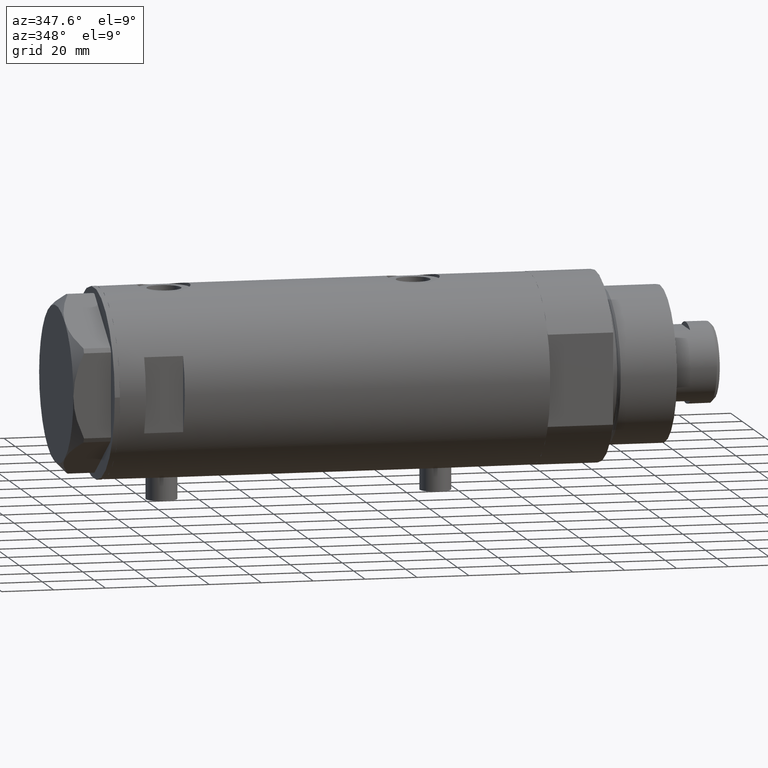
[diagram: clean part render]
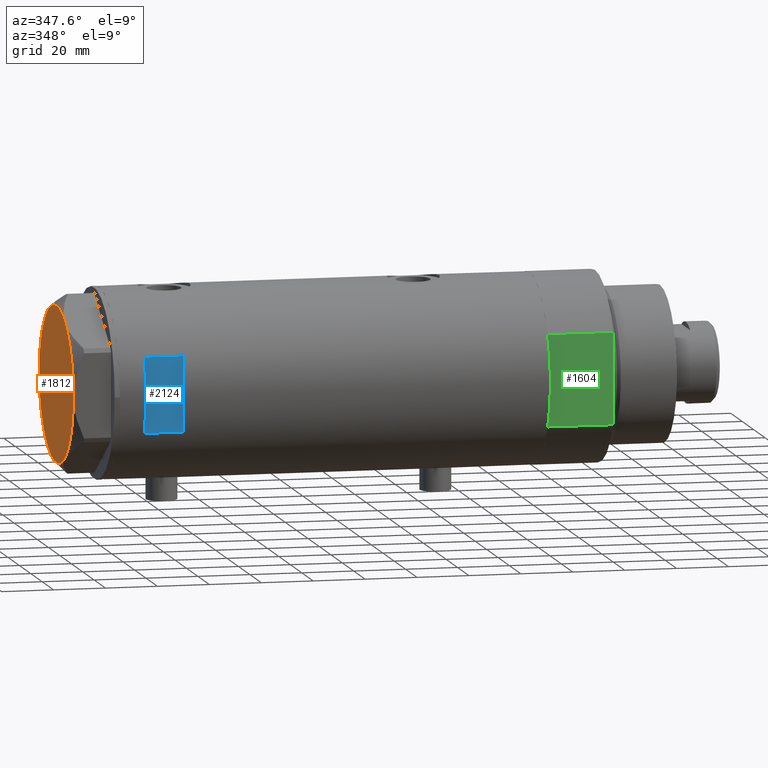
[diagram: same view with three faces highlighted in distinct colors, each labeled with its STEP entity id]
A machine part, auxiliary view with three faces highlighted in distinct colors.
Their STEP definitions:

[orange] entity #1812 — the highlighted planar face has unit normal (-1, -0, 0).
#322 = EDGE_CURVE ( 'NONE', #2863, #3522, #1641, .T. ) ;
#350 = EDGE_CURVE ( 'NONE', #3546, #1949, #558, .T. ) ;
#389 = CARTESIAN_POINT ( 'NONE',  ( 30.00000000000000000, 9.013887592422954582E-15, 14.50000000000000000 ) ) ;
#497 = CARTESIAN_POINT ( 'NONE',  ( 14.99999999999998757, -25.98076211353316722, 14.50000000000000000 ) ) ;
#509 = CARTESIAN_POINT ( 'NONE',  ( -30.00000000000000000, 0.000000000000000000, 14.50000000000000000 ) ) ;
#534 = ORIENTED_EDGE ( 'NONE', *, *, #2879, .T. ) ;
#558 = CIRCLE ( 'NONE', #2775, 30.00000000000000000 ) ;
#598 = DIRECTION ( 'NONE',  ( 1.000000000000000000, 0.000000000000000000, 0.000000000000000000 ) ) ;
#631 = EDGE_CURVE ( 'NONE', #1949, #2863, #1353, .T. ) ;
#709 = AXIS2_PLACEMENT_3D ( 'NONE', #2300, #2397, #598 ) ;
#812 = DIRECTION ( 'NONE',  ( 0.000000000000000000, 0.000000000000000000, 1.000000000000000000 ) ) ;
#832 = CARTESIAN_POINT ( 'NONE',  ( 0.000000000000000000, 0.000000000000000000, 14.50000000000000000 ) ) ;
#1039 = CARTESIAN_POINT ( 'NONE',  ( -14.99999999999999645, 25.98076211353316367, 14.50000000000000000 ) ) ;
#1155 = CIRCLE ( 'NONE', #1943, 30.00000000000000000 ) ;
#1180 = CARTESIAN_POINT ( 'NONE',  ( 0.000000000000000000, 0.000000000000000000, 14.50000000000000000 ) ) ;
#1258 = CARTESIAN_POINT ( 'NONE',  ( 0.000000000000000000, 0.000000000000000000, 14.50000000000000000 ) ) ;
#1353 = CIRCLE ( 'NONE', #4036, 30.00000000000000000 ) ;
#1407 = DIRECTION ( 'NONE',  ( 1.000000000000000000, 0.000000000000000000, 0.000000000000000000 ) ) ;
#1494 = AXIS2_PLACEMENT_3D ( 'NONE', #1180, #1611, #3273 ) ;
#1514 = AXIS2_PLACEMENT_3D ( 'NONE', #3544, #1881, #3259 ) ;
#1611 = DIRECTION ( 'NONE',  ( 0.000000000000000000, 0.000000000000000000, 1.000000000000000000 ) ) ;
#1631 = EDGE_LOOP ( 'NONE', ( #534, #2942, #3440, #1975, #4055, #4415 ) ) ;
#1641 = CIRCLE ( 'NONE', #4456, 30.00000000000000000 ) ;
#1694 = CARTESIAN_POINT ( 'NONE',  ( -14.99999999999999645, -25.98076211353316367, 14.50000000000000000 ) ) ;
#1752 = DIRECTION ( 'NONE',  ( 1.000000000000000000, 0.000000000000000000, 0.000000000000000000 ) ) ;
#1812 = ADVANCED_FACE ( 'NONE', ( #2904 ), #2246, .T. ) ;
#1881 = DIRECTION ( 'NONE',  ( 0.000000000000000000, 0.000000000000000000, 1.000000000000000000 ) ) ;
#1943 = AXIS2_PLACEMENT_3D ( 'NONE', #832, #812, #3976 ) ;
#1949 = VERTEX_POINT ( 'NONE', #1039 ) ;
#1975 = ORIENTED_EDGE ( 'NONE', *, *, #631, .T. ) ;
#2044 = VERTEX_POINT ( 'NONE', #497 ) ;
#2168 = DIRECTION ( 'NONE',  ( 0.000000000000000000, 0.000000000000000000, 1.000000000000000000 ) ) ;
#2246 = PLANE ( 'NONE',  #1494 ) ;
#2300 = CARTESIAN_POINT ( 'NONE',  ( 0.000000000000000000, 0.000000000000000000, 14.50000000000000000 ) ) ;
#2397 = DIRECTION ( 'NONE',  ( 0.000000000000000000, 0.000000000000000000, 1.000000000000000000 ) ) ;
#2504 = DIRECTION ( 'NONE',  ( 0.000000000000000000, 0.000000000000000000, 1.000000000000000000 ) ) ;
#2518 = EDGE_CURVE ( 'NONE', #2786, #3546, #1155, .T. ) ;
#2578 = DIRECTION ( 'NONE',  ( 0.000000000000000000, 0.000000000000000000, 1.000000000000000000 ) ) ;
#2775 = AXIS2_PLACEMENT_3D ( 'NONE', #1258, #2578, #3265 ) ;
#2786 = VERTEX_POINT ( 'NONE', #389 ) ;
#2798 = CARTESIAN_POINT ( 'NONE',  ( 0.000000000000000000, 0.000000000000000000, 14.50000000000000000 ) ) ;
#2863 = VERTEX_POINT ( 'NONE', #509 ) ;
#2879 = EDGE_CURVE ( 'NONE', #2044, #2786, #3161, .T. ) ;
#2904 = FACE_OUTER_BOUND ( 'NONE', #1631, .T. ) ;
#2942 = ORIENTED_EDGE ( 'NONE', *, *, #2518, .T. ) ;
#3161 = CIRCLE ( 'NONE', #1514, 30.00000000000000000 ) ;
#3259 = DIRECTION ( 'NONE',  ( 1.000000000000000000, 0.000000000000000000, 0.000000000000000000 ) ) ;
#3265 = DIRECTION ( 'NONE',  ( 1.000000000000000000, 0.000000000000000000, 0.000000000000000000 ) ) ;
#3273 = DIRECTION ( 'NONE',  ( 1.000000000000000000, 0.000000000000000000, -0.000000000000000000 ) ) ;
#3440 = ORIENTED_EDGE ( 'NONE', *, *, #350, .T. ) ;
#3522 = VERTEX_POINT ( 'NONE', #1694 ) ;
#3544 = CARTESIAN_POINT ( 'NONE',  ( 0.000000000000000000, 0.000000000000000000, 14.50000000000000000 ) ) ;
#3546 = VERTEX_POINT ( 'NONE', #4163 ) ;
#3976 = DIRECTION ( 'NONE',  ( 1.000000000000000000, 0.000000000000000000, 0.000000000000000000 ) ) ;
#4036 = AXIS2_PLACEMENT_3D ( 'NONE', #2798, #2504, #1407 ) ;
#4055 = ORIENTED_EDGE ( 'NONE', *, *, #322, .T. ) ;
#4163 = CARTESIAN_POINT ( 'NONE',  ( 14.99999999999999467, 25.98076211353316367, 14.50000000000000000 ) ) ;
#4247 = CARTESIAN_POINT ( 'NONE',  ( 0.000000000000000000, 0.000000000000000000, 14.50000000000000000 ) ) ;
#4281 = EDGE_CURVE ( 'NONE', #3522, #2044, #4461, .T. ) ;
#4415 = ORIENTED_EDGE ( 'NONE', *, *, #4281, .T. ) ;
#4456 = AXIS2_PLACEMENT_3D ( 'NONE', #4247, #2168, #1752 ) ;
#4461 = CIRCLE ( 'NONE', #709, 30.00000000000000000 ) ;

[blue] entity #2124 — the highlighted planar face has unit normal (-0, 1, 0).
#48 = VECTOR ( 'NONE', #3559, 1000.000000000000000 ) ;
#447 = ORIENTED_EDGE ( 'NONE', *, *, #1871, .T. ) ;
#627 = VECTOR ( 'NONE', #1038, 1000.000000000000000 ) ;
#802 = CARTESIAN_POINT ( 'NONE',  ( 14.49137674618942739, -33.50000000000000000, -82.90000000000000568 ) ) ;
#1038 = DIRECTION ( 'NONE',  ( 1.000000000000000000, -0.000000000000000000, -0.000000000000000000 ) ) ;
#1450 = LINE ( 'NONE', #802, #48 ) ;
#1590 = LINE ( 'NONE', #3234, #3365 ) ;
#1603 = DIRECTION ( 'NONE',  ( 0.000000000000000000, -0.000000000000000000, 1.000000000000000000 ) ) ;
#1739 = CARTESIAN_POINT ( 'NONE',  ( 14.49137674618942739, -33.50000000000000000, 72.89999999999999147 ) ) ;
#1871 = EDGE_CURVE ( 'NONE', #2912, #2497, #1590, .T. ) ;
#2026 = EDGE_CURVE ( 'NONE', #2497, #2541, #3554, .T. ) ;
#2124 = ADVANCED_FACE ( 'NONE', ( #2604 ), #4343, .F. ) ;
#2193 = CARTESIAN_POINT ( 'NONE',  ( -36.50000000000000000, -33.50000000000000000, 57.89999999999999147 ) ) ;
#2203 = AXIS2_PLACEMENT_3D ( 'NONE', #3314, #3225, #1603 ) ;
#2255 = CARTESIAN_POINT ( 'NONE',  ( -14.49137674618942739, -33.50000000000000000, 57.89999999999999147 ) ) ;
#2363 = ORIENTED_EDGE ( 'NONE', *, *, #4473, .T. ) ;
#2474 = ORIENTED_EDGE ( 'NONE', *, *, #3857, .F. ) ;
#2497 = VERTEX_POINT ( 'NONE', #2255 ) ;
#2524 = CARTESIAN_POINT ( 'NONE',  ( -14.49137674618942739, -33.50000000000000000, 72.89999999999999147 ) ) ;
#2541 = VERTEX_POINT ( 'NONE', #3264 ) ;
#2604 = FACE_OUTER_BOUND ( 'NONE', #3352, .T. ) ;
#2827 = LINE ( 'NONE', #4226, #627 ) ;
#2912 = VERTEX_POINT ( 'NONE', #2524 ) ;
#2958 = DIRECTION ( 'NONE',  ( -0.000000000000000000, -0.000000000000000000, -1.000000000000000000 ) ) ;
#3006 = ORIENTED_EDGE ( 'NONE', *, *, #2026, .T. ) ;
#3225 = DIRECTION ( 'NONE',  ( 0.000000000000000000, 1.000000000000000000, 0.000000000000000000 ) ) ;
#3234 = CARTESIAN_POINT ( 'NONE',  ( -14.49137674618942739, -33.50000000000000000, -82.90000000000000568 ) ) ;
#3264 = CARTESIAN_POINT ( 'NONE',  ( 14.49137674618942739, -33.50000000000000000, 57.89999999999999147 ) ) ;
#3314 = CARTESIAN_POINT ( 'NONE',  ( -36.50000000000000000, -33.50000000000000000, 72.89999999999999147 ) ) ;
#3352 = EDGE_LOOP ( 'NONE', ( #447, #3006, #2363, #2474 ) ) ;
#3365 = VECTOR ( 'NONE', #2958, 1000.000000000000000 ) ;
#3554 = LINE ( 'NONE', #2193, #3949 ) ;
#3559 = DIRECTION ( 'NONE',  ( 0.000000000000000000, 0.000000000000000000, 1.000000000000000000 ) ) ;
#3630 = DIRECTION ( 'NONE',  ( 1.000000000000000000, -0.000000000000000000, -0.000000000000000000 ) ) ;
#3857 = EDGE_CURVE ( 'NONE', #2912, #3873, #2827, .T. ) ;
#3873 = VERTEX_POINT ( 'NONE', #1739 ) ;
#3949 = VECTOR ( 'NONE', #3630, 1000.000000000000000 ) ;
#4226 = CARTESIAN_POINT ( 'NONE',  ( -36.50000000000000000, -33.50000000000000000, 72.89999999999999147 ) ) ;
#4343 = PLANE ( 'NONE',  #2203 ) ;
#4473 = EDGE_CURVE ( 'NONE', #2541, #3873, #1450, .T. ) ;

[green] entity #1604 — the highlighted planar face has unit normal (-0, 1, 0).
#261 = VERTEX_POINT ( 'NONE', #394 ) ;
#333 = CARTESIAN_POINT ( 'NONE',  ( -17.55704986607943141, -32.00000000000000000, 0.000000000000000000 ) ) ;
#359 = VECTOR ( 'NONE', #2544, 1000.000000000000000 ) ;
#394 = CARTESIAN_POINT ( 'NONE',  ( 17.55704986607943496, -32.00000000000000000, 25.19999999999999929 ) ) ;
#450 = ORIENTED_EDGE ( 'NONE', *, *, #1400, .F. ) ;
#512 = CARTESIAN_POINT ( 'NONE',  ( 0.000000000000000000, -32.00000000000000000, 0.000000000000000000 ) ) ;
#613 = VERTEX_POINT ( 'NONE', #4404 ) ;
#767 = ORIENTED_EDGE ( 'NONE', *, *, #4395, .T. ) ;
#791 = DIRECTION ( 'NONE',  ( 0.000000000000000000, -0.000000000000000000, 1.000000000000000000 ) ) ;
#1091 = LINE ( 'NONE', #2113, #4321 ) ;
#1167 = ORIENTED_EDGE ( 'NONE', *, *, #1738, .F. ) ;
#1206 = LINE ( 'NONE', #2229, #359 ) ;
#1232 = EDGE_LOOP ( 'NONE', ( #3269, #450, #1167, #3731, #767 ) ) ;
#1299 = VECTOR ( 'NONE', #2274, 1000.000000000000000 ) ;
#1400 = EDGE_CURVE ( 'NONE', #613, #1497, #3053, .T. ) ;
#1482 = FACE_OUTER_BOUND ( 'NONE', #1232, .T. ) ;
#1497 = VERTEX_POINT ( 'NONE', #3035 ) ;
#1604 = ADVANCED_FACE ( 'NONE', ( #1482 ), #2123, .F. ) ;
#1738 = EDGE_CURVE ( 'NONE', #4138, #613, #3575, .T. ) ;
#1868 = CARTESIAN_POINT ( 'NONE',  ( -17.55704986607943141, -32.00000000000000000, 0.000000000000000000 ) ) ;
#1927 = VERTEX_POINT ( 'NONE', #4452 ) ;
#2113 = CARTESIAN_POINT ( 'NONE',  ( 17.55704986607943141, -32.00000000000000000, 0.000000000000000000 ) ) ;
#2123 = PLANE ( 'NONE',  #2772 ) ;
#2192 = VECTOR ( 'NONE', #3790, 1000.000000000000000 ) ;
#2229 = CARTESIAN_POINT ( 'NONE',  ( -17.55704986607943141, -32.00000000000000000, 25.19999999999999929 ) ) ;
#2274 = DIRECTION ( 'NONE',  ( -1.000000000000000000, -0.000000000000000000, -0.000000000000000000 ) ) ;
#2544 = DIRECTION ( 'NONE',  ( -1.000000000000000000, -0.000000000000000000, -0.000000000000000000 ) ) ;
#2772 = AXIS2_PLACEMENT_3D ( 'NONE', #4223, #3882, #791 ) ;
#2823 = EDGE_CURVE ( 'NONE', #261, #1497, #1206, .T. ) ;
#2941 = EDGE_CURVE ( 'NONE', #1927, #4138, #4238, .T. ) ;
#3035 = CARTESIAN_POINT ( 'NONE',  ( -17.55704986607943496, -32.00000000000000000, 25.19999999999999929 ) ) ;
#3053 = LINE ( 'NONE', #333, #2192 ) ;
#3269 = ORIENTED_EDGE ( 'NONE', *, *, #2823, .T. ) ;
#3574 = VECTOR ( 'NONE', #4292, 1000.000000000000000 ) ;
#3575 = LINE ( 'NONE', #1868, #3574 ) ;
#3731 = ORIENTED_EDGE ( 'NONE', *, *, #2941, .F. ) ;
#3740 = CARTESIAN_POINT ( 'NONE',  ( -17.55704986607943141, -32.00000000000000000, 0.000000000000000000 ) ) ;
#3790 = DIRECTION ( 'NONE',  ( -0.000000000000000000, -0.000000000000000000, 1.000000000000000000 ) ) ;
#3882 = DIRECTION ( 'NONE',  ( -0.000000000000000000, 1.000000000000000000, 0.000000000000000000 ) ) ;
#3896 = DIRECTION ( 'NONE',  ( -0.000000000000000000, -0.000000000000000000, 1.000000000000000000 ) ) ;
#4138 = VERTEX_POINT ( 'NONE', #512 ) ;
#4223 = CARTESIAN_POINT ( 'NONE',  ( -17.55704986607943141, -32.00000000000000000, 0.000000000000000000 ) ) ;
#4238 = LINE ( 'NONE', #3740, #1299 ) ;
#4292 = DIRECTION ( 'NONE',  ( -1.000000000000000000, -0.000000000000000000, -0.000000000000000000 ) ) ;
#4321 = VECTOR ( 'NONE', #3896, 1000.000000000000000 ) ;
#4395 = EDGE_CURVE ( 'NONE', #1927, #261, #1091, .T. ) ;
#4404 = CARTESIAN_POINT ( 'NONE',  ( -17.55704986607943496, -32.00000000000000000, 0.000000000000000000 ) ) ;
#4452 = CARTESIAN_POINT ( 'NONE',  ( 17.55704986607943141, -32.00000000000000000, 0.000000000000000000 ) ) ;